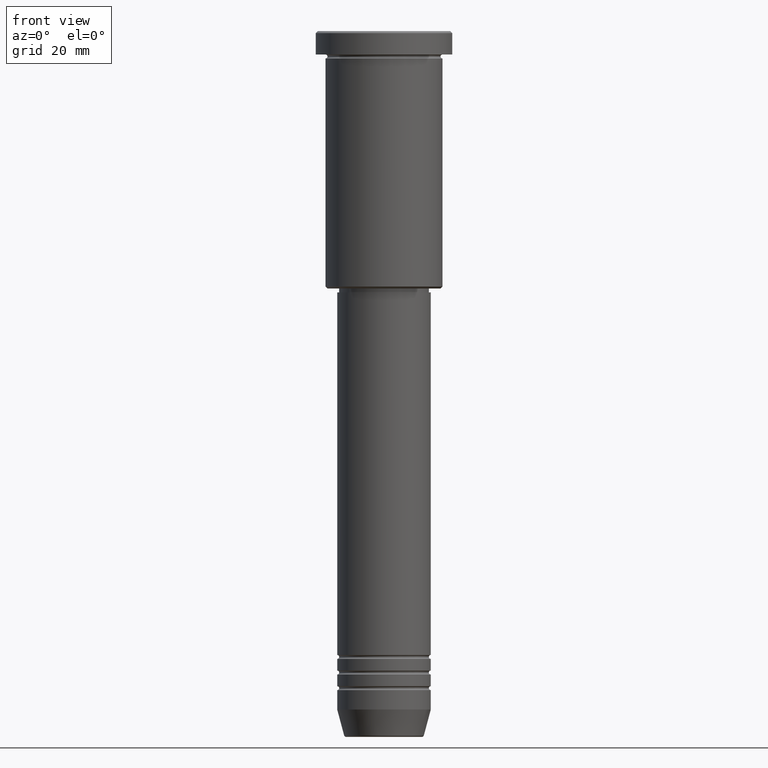
[diagram: clean part render]
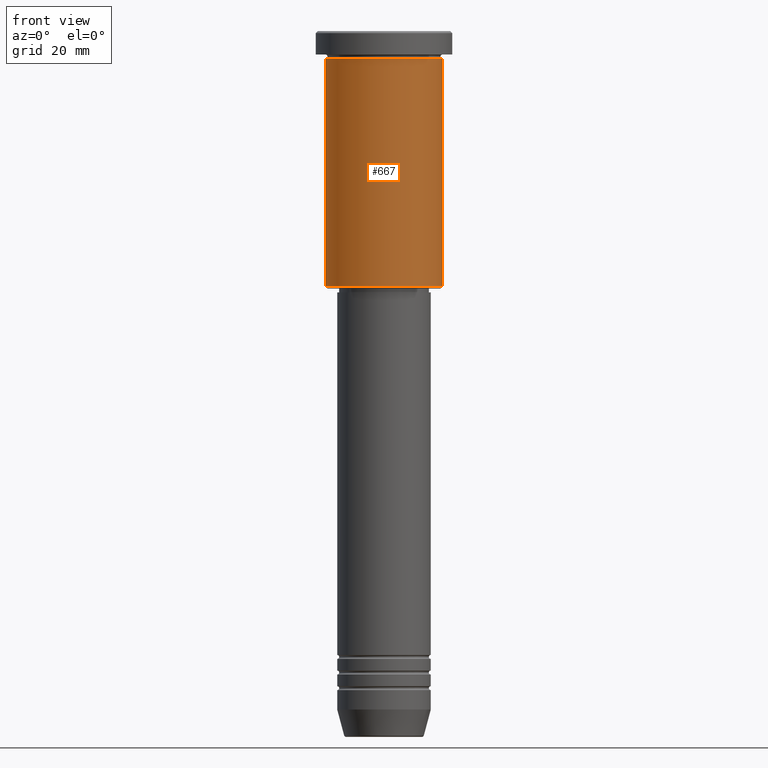
[diagram: same view with one face highlighted and labeled with its STEP entity id]
A machine part, front view. The second image highlights one B-rep face of the part: STEP entity #667.
In plain terms, the highlighted cylindrical surface (partial cylindrical patch) has radius 15 mm, axis along (-0, -0, 1).
Its self-contained STEP definition (entity closure, byte-faithful):
#51 = CYLINDRICAL_SURFACE ( 'NONE', #966, 15.00000000000000000 ) ;
#63 = VERTEX_POINT ( 'NONE', #1074 ) ;
#69 = VERTEX_POINT ( 'NONE', #684 ) ;
#110 = DIRECTION ( 'NONE',  ( -0.000000000000000000, -0.000000000000000000, 1.000000000000000000 ) ) ;
#147 = DIRECTION ( 'NONE',  ( 1.000000000000000000, 0.000000000000000000, 0.000000000000000000 ) ) ;
#178 = VERTEX_POINT ( 'NONE', #263 ) ;
#205 = VECTOR ( 'NONE', #417, 1000.000000000000000 ) ;
#246 = AXIS2_PLACEMENT_3D ( 'NONE', #866, #1062, #593 ) ;
#263 = CARTESIAN_POINT ( 'NONE',  ( 15.00000000000000000, 0.000000000000000000, -65.49999999999998579 ) ) ;
#355 = DIRECTION ( 'NONE',  ( -1.000000000000000000, 0.000000000000000000, 0.000000000000000000 ) ) ;
#406 = CIRCLE ( 'NONE', #512, 15.00000000000000000 ) ;
#417 = DIRECTION ( 'NONE',  ( -0.000000000000000000, -0.000000000000000000, 1.000000000000000000 ) ) ;
#475 = DIRECTION ( 'NONE',  ( -0.000000000000000000, -0.000000000000000000, 1.000000000000000000 ) ) ;
#476 = EDGE_CURVE ( 'NONE', #738, #178, #406, .T. ) ;
#512 = AXIS2_PLACEMENT_3D ( 'NONE', #805, #475, #355 ) ;
#558 = EDGE_CURVE ( 'NONE', #178, #63, #1016, .T. ) ;
#589 = ORIENTED_EDGE ( 'NONE', *, *, #1053, .F. ) ;
#593 = DIRECTION ( 'NONE',  ( 1.000000000000000000, 0.000000000000000000, 0.000000000000000000 ) ) ;
#667 = ADVANCED_FACE ( 'NONE', ( #977 ), #51, .T. ) ;
#684 = CARTESIAN_POINT ( 'NONE',  ( -15.00000000000000000, 1.836970198721029589E-15, -6.999999999999995559 ) ) ;
#695 = LINE ( 'NONE', #972, #205 ) ;
#706 = EDGE_CURVE ( 'NONE', #738, #69, #695, .T. ) ;
#738 = VERTEX_POINT ( 'NONE', #783 ) ;
#783 = CARTESIAN_POINT ( 'NONE',  ( -15.00000000000000000, 1.836970198721029589E-15, -65.49999999999998579 ) ) ;
#805 = CARTESIAN_POINT ( 'NONE',  ( 0.000000000000000000, 0.000000000000000000, -65.49999999999998579 ) ) ;
#866 = CARTESIAN_POINT ( 'NONE',  ( 0.000000000000000000, 0.000000000000000000, -6.999999999999995559 ) ) ;
#868 = DIRECTION ( 'NONE',  ( -0.000000000000000000, -0.000000000000000000, 1.000000000000000000 ) ) ;
#929 = CIRCLE ( 'NONE', #246, 15.00000000000000000 ) ;
#946 = ORIENTED_EDGE ( 'NONE', *, *, #558, .T. ) ;
#966 = AXIS2_PLACEMENT_3D ( 'NONE', #1044, #868, #147 ) ;
#972 = CARTESIAN_POINT ( 'NONE',  ( -15.00000000000000000, 1.836970198721029589E-15, 0.000000000000000000 ) ) ;
#977 = FACE_OUTER_BOUND ( 'NONE', #1142, .T. ) ;
#1016 = LINE ( 'NONE', #1111, #1170 ) ;
#1031 = ORIENTED_EDGE ( 'NONE', *, *, #476, .T. ) ;
#1044 = CARTESIAN_POINT ( 'NONE',  ( 0.000000000000000000, 0.000000000000000000, 0.000000000000000000 ) ) ;
#1053 = EDGE_CURVE ( 'NONE', #69, #63, #929, .T. ) ;
#1062 = DIRECTION ( 'NONE',  ( -0.000000000000000000, -0.000000000000000000, 1.000000000000000000 ) ) ;
#1074 = CARTESIAN_POINT ( 'NONE',  ( 15.00000000000000000, 0.000000000000000000, -6.999999999999995559 ) ) ;
#1103 = ORIENTED_EDGE ( 'NONE', *, *, #706, .F. ) ;
#1111 = CARTESIAN_POINT ( 'NONE',  ( 15.00000000000000000, 0.000000000000000000, 0.000000000000000000 ) ) ;
#1142 = EDGE_LOOP ( 'NONE', ( #1103, #1031, #946, #589 ) ) ;
#1170 = VECTOR ( 'NONE', #110, 1000.000000000000000 ) ;